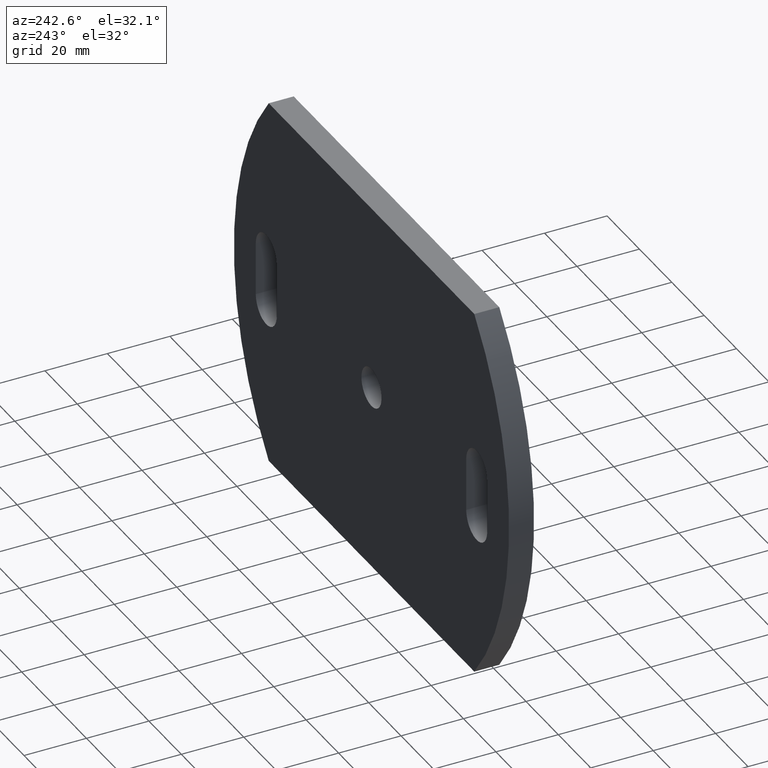
[diagram: clean part render]
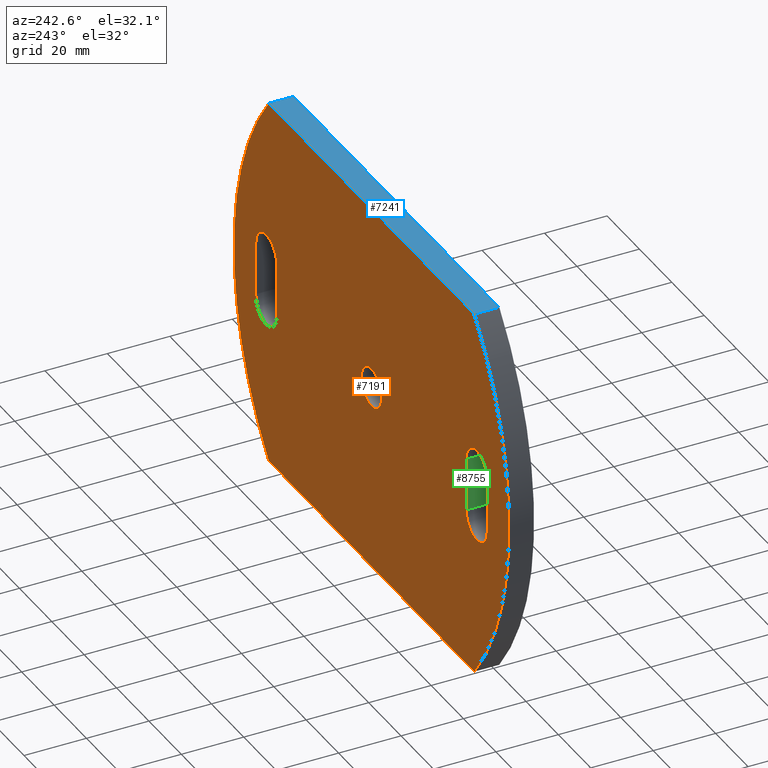
[diagram: same view with three faces highlighted in distinct colors, each labeled with its STEP entity id]
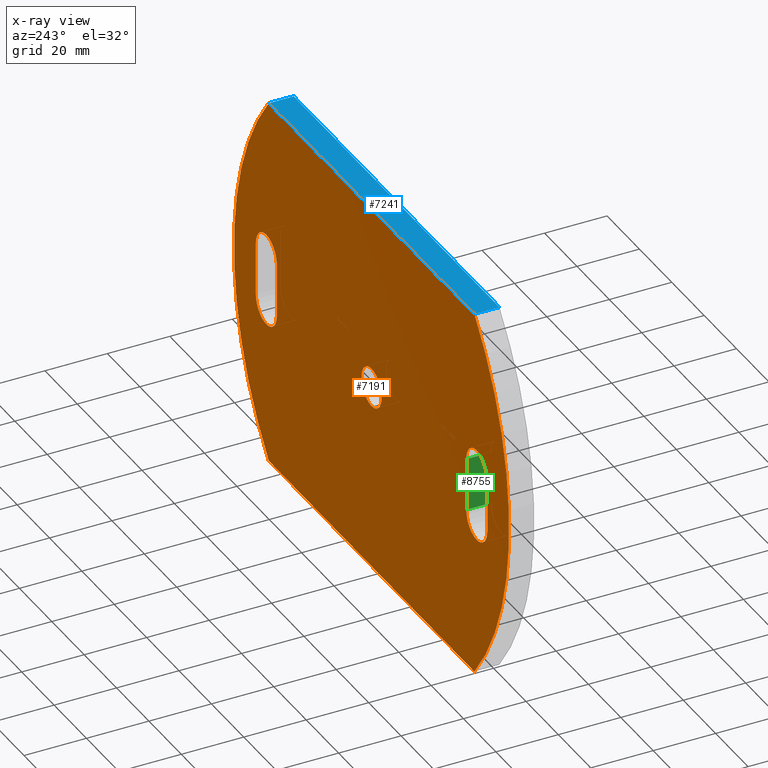
[diagram: x-ray of the same camera — body ghosted, the three highlighted faces saturated]
A machine part, auxiliary view with three faces highlighted in distinct colors.
The next image is the same camera in x-ray (body ghosted, the three faces saturated) — at least one of them is partly hidden behind the body in this view.
Their STEP definitions:

[orange] entity #7191 — the highlighted planar face has unit normal (0, -1, 0).
#195 = VERTEX_POINT ( 'NONE', #1056 ) ;
#251 = CARTESIAN_POINT ( 'NONE',  ( 0.0000000000000000000, 8.000000000000000000, 0.0000000000000000000 ) ) ;
#387 = CARTESIAN_POINT ( 'NONE',  ( 63.49999999999998600, 8.000000000000000000, 60.00000000000002800 ) ) ;
#426 = EDGE_CURVE ( 'NONE', #3360, #195, #10870, .T. ) ;
#711 = DIRECTION ( 'NONE',  ( 0.0000000000000000000, 1.000000000000000000, 0.0000000000000000000 ) ) ;
#772 = ORIENTED_EDGE ( 'NONE', *, *, #8766, .T. ) ;
#789 = EDGE_CURVE ( 'NONE', #3967, #2652, #3811, .T. ) ;
#1056 = CARTESIAN_POINT ( 'NONE',  ( -65.00000000000000000, 8.000000000000000000, 14.99999999999998000 ) ) ;
#1059 = EDGE_CURVE ( 'NONE', #6535, #6808, #1264, .T. ) ;
#1106 = VERTEX_POINT ( 'NONE', #4754 ) ;
#1110 = CARTESIAN_POINT ( 'NONE',  ( -58.50000000000000700, 8.000000000000000000, -8.499999999999984000 ) ) ;
#1128 = EDGE_CURVE ( 'NONE', #6084, #9875, #7521, .T. ) ;
#1231 = VECTOR ( 'NONE', #10256, 1000.000000000000000 ) ;
#1264 = CIRCLE ( 'NONE', #7850, 6.500000000000005300 ) ;
#1273 = DIRECTION ( 'NONE',  ( 0.0000000000000000000, 0.0000000000000000000, 1.000000000000000000 ) ) ;
#1335 = DIRECTION ( 'NONE',  ( 0.0000000000000000000, 1.000000000000000000, 0.0000000000000000000 ) ) ;
#1432 = CARTESIAN_POINT ( 'NONE',  ( 0.0000000000000000000, 8.000000000000000000, 0.0000000000000000000 ) ) ;
#1514 = CARTESIAN_POINT ( 'NONE',  ( 58.49999999999998600, 8.000000000000000000, -8.500000000000008900 ) ) ;
#1586 = AXIS2_PLACEMENT_3D ( 'NONE', #1432, #10627, #3860 ) ;
#1613 = VERTEX_POINT ( 'NONE', #6567 ) ;
#1615 = DIRECTION ( 'NONE',  ( -0.0000000000000000000, -0.0000000000000000000, -1.000000000000000000 ) ) ;
#1653 = AXIS2_PLACEMENT_3D ( 'NONE', #5186, #10310, #4386 ) ;
#1672 = DIRECTION ( 'NONE',  ( 0.0000000000000000000, 0.0000000000000000000, 1.000000000000000000 ) ) ;
#1684 = FACE_BOUND ( 'NONE', #4648, .T. ) ;
#1830 = CARTESIAN_POINT ( 'NONE',  ( -65.00000000000000000, 8.000000000000000000, 8.499999999999989300 ) ) ;
#1840 = DIRECTION ( 'NONE',  ( -1.000000000000000000, -0.0000000000000000000, -3.278217592397115900E-016 ) ) ;
#1854 = VERTEX_POINT ( 'NONE', #7710 ) ;
#1871 = EDGE_CURVE ( 'NONE', #1854, #7556, #3378, .T. ) ;
#1980 = ORIENTED_EDGE ( 'NONE', *, *, #3587, .F. ) ;
#2001 = ORIENTED_EDGE ( 'NONE', *, *, #5338, .T. ) ;
#2232 = EDGE_CURVE ( 'NONE', #7556, #3360, #9351, .T. ) ;
#2312 = AXIS2_PLACEMENT_3D ( 'NONE', #1830, #2550, #8570 ) ;
#2409 = ORIENTED_EDGE ( 'NONE', *, *, #2232, .F. ) ;
#2503 = FACE_BOUND ( 'NONE', #3841, .T. ) ;
#2550 = DIRECTION ( 'NONE',  ( 0.0000000000000000000, 1.000000000000000000, 0.0000000000000000000 ) ) ;
#2652 = VERTEX_POINT ( 'NONE', #1514 ) ;
#2723 = ORIENTED_EDGE ( 'NONE', *, *, #5634, .F. ) ;
#2764 = FACE_OUTER_BOUND ( 'NONE', #2965, .T. ) ;
#2849 = VECTOR ( 'NONE', #3952, 1000.000000000000000 ) ;
#2965 = EDGE_LOOP ( 'NONE', ( #772, #10415, #7334, #2001 ) ) ;
#3028 = DIRECTION ( 'NONE',  ( 0.0000000000000000000, 0.0000000000000000000, 1.000000000000000000 ) ) ;
#3127 = DIRECTION ( 'NONE',  ( 0.0000000000000000000, 1.000000000000000000, 0.0000000000000000000 ) ) ;
#3228 = CARTESIAN_POINT ( 'NONE',  ( 71.50000000000000000, 8.000000000000000000, -8.500000000000010700 ) ) ;
#3301 = AXIS2_PLACEMENT_3D ( 'NONE', #5023, #9353, #8446 ) ;
#3324 = AXIS2_PLACEMENT_3D ( 'NONE', #8090, #6333, #1273 ) ;
#3360 = VERTEX_POINT ( 'NONE', #7179 ) ;
#3378 = CIRCLE ( 'NONE', #1653, 6.499999999999992000 ) ;
#3421 = CARTESIAN_POINT ( 'NONE',  ( -71.50000000000000000, 8.000000000000000000, -8.499999999999985800 ) ) ;
#3439 = CARTESIAN_POINT ( 'NONE',  ( -63.49999999999998600, 8.000000000000000000, -60.00000000000001400 ) ) ;
#3503 = CARTESIAN_POINT ( 'NONE',  ( 65.00000000000000000, 8.000000000000000000, 15.00000000000001600 ) ) ;
#3521 = ORIENTED_EDGE ( 'NONE', *, *, #10789, .F. ) ;
#3587 = EDGE_CURVE ( 'NONE', #2652, #6535, #8149, .T. ) ;
#3752 = LINE ( 'NONE', #3228, #5592 ) ;
#3811 = CIRCLE ( 'NONE', #4640, 6.500000000000005300 ) ;
#3841 = EDGE_LOOP ( 'NONE', ( #10646, #4162 ) ) ;
#3860 = DIRECTION ( 'NONE',  ( 0.0000000000000000000, 0.0000000000000000000, 1.000000000000000000 ) ) ;
#3952 = DIRECTION ( 'NONE',  ( 1.000000000000000000, 0.0000000000000000000, 3.824587191129968500E-016 ) ) ;
#3967 = VERTEX_POINT ( 'NONE', #6648 ) ;
#3985 = ORIENTED_EDGE ( 'NONE', *, *, #426, .F. ) ;
#4101 = CIRCLE ( 'NONE', #6513, 6.500000000000005300 ) ;
#4162 = ORIENTED_EDGE ( 'NONE', *, *, #4432, .F. ) ;
#4386 = DIRECTION ( 'NONE',  ( 0.0000000000000000000, 0.0000000000000000000, 1.000000000000000000 ) ) ;
#4432 = EDGE_CURVE ( 'NONE', #8598, #1613, #4553, .T. ) ;
#4553 = CIRCLE ( 'NONE', #1586, 6.250000000000000000 ) ;
#4631 = CARTESIAN_POINT ( 'NONE',  ( -9.470930232558071500, 8.000000000000000000, 0.0000000000000000000 ) ) ;
#4640 = AXIS2_PLACEMENT_3D ( 'NONE', #5681, #6591, #8346 ) ;
#4648 = EDGE_LOOP ( 'NONE', ( #1980, #10343, #3521, #2723, #8720 ) ) ;
#4754 = CARTESIAN_POINT ( 'NONE',  ( 63.50000000000001400, 8.000000000000000000, -59.99999999999997200 ) ) ;
#4909 = ORIENTED_EDGE ( 'NONE', *, *, #1871, .F. ) ;
#5023 = CARTESIAN_POINT ( 'NONE',  ( -9.470930232558071500, 8.000000000000000000, 0.0000000000000000000 ) ) ;
#5132 = VERTEX_POINT ( 'NONE', #8070 ) ;
#5186 = CARTESIAN_POINT ( 'NONE',  ( -65.00000000000000000, 8.000000000000000000, -8.500000000000010700 ) ) ;
#5338 = EDGE_CURVE ( 'NONE', #9875, #9362, #6435, .T. ) ;
#5560 = CARTESIAN_POINT ( 'NONE',  ( 65.00000000000000000, 8.000000000000000000, 8.500000000000010700 ) ) ;
#5592 = VECTOR ( 'NONE', #1615, 1000.000000000000000 ) ;
#5600 = DIRECTION ( 'NONE',  ( 0.0000000000000000000, 0.0000000000000000000, 1.000000000000000000 ) ) ;
#5614 = EDGE_CURVE ( 'NONE', #1613, #8598, #11013, .T. ) ;
#5634 = EDGE_CURVE ( 'NONE', #6808, #8134, #4101, .T. ) ;
#5681 = CARTESIAN_POINT ( 'NONE',  ( 65.00000000000000000, 8.000000000000000000, -8.499999999999987600 ) ) ;
#5947 = VECTOR ( 'NONE', #6288, 1000.000000000000000 ) ;
#5991 = AXIS2_PLACEMENT_3D ( 'NONE', #4631, #9609, #10430 ) ;
#6084 = VERTEX_POINT ( 'NONE', #7989 ) ;
#6288 = DIRECTION ( 'NONE',  ( -0.0000000000000000000, -0.0000000000000000000, -1.000000000000000000 ) ) ;
#6333 = DIRECTION ( 'NONE',  ( 0.0000000000000000000, 1.000000000000000000, 0.0000000000000000000 ) ) ;
#6435 = LINE ( 'NONE', #8189, #2849 ) ;
#6513 = AXIS2_PLACEMENT_3D ( 'NONE', #5560, #1335, #5600 ) ;
#6535 = VERTEX_POINT ( 'NONE', #8752 ) ;
#6567 = CARTESIAN_POINT ( 'NONE',  ( 0.0000000000000000000, 8.000000000000000000, 6.250000000000000000 ) ) ;
#6591 = DIRECTION ( 'NONE',  ( 0.0000000000000000000, 1.000000000000000000, 0.0000000000000000000 ) ) ;
#6648 = CARTESIAN_POINT ( 'NONE',  ( 71.50000000000000000, 8.000000000000000000, -8.500000000000010700 ) ) ;
#6808 = VERTEX_POINT ( 'NONE', #3503 ) ;
#6896 = EDGE_CURVE ( 'NONE', #5132, #1854, #7157, .T. ) ;
#6900 = CARTESIAN_POINT ( 'NONE',  ( 58.49999999999998600, 8.000000000000000000, -8.500000000000008900 ) ) ;
#7157 = LINE ( 'NONE', #1110, #5947 ) ;
#7179 = CARTESIAN_POINT ( 'NONE',  ( -71.50000000000000000, 8.000000000000000000, 8.499999999999982200 ) ) ;
#7191 = ADVANCED_FACE ( 'NONE', ( #1684, #8361, #2503, #2764 ), #10510, .F. ) ;
#7334 = ORIENTED_EDGE ( 'NONE', *, *, #1128, .T. ) ;
#7521 = CIRCLE ( 'NONE', #8422, 94.47093023255811800 ) ;
#7556 = VERTEX_POINT ( 'NONE', #7808 ) ;
#7710 = CARTESIAN_POINT ( 'NONE',  ( -58.50000000000000700, 8.000000000000000000, -8.499999999999984000 ) ) ;
#7720 = EDGE_LOOP ( 'NONE', ( #2409, #4909, #10231, #10735, #3985 ) ) ;
#7798 = VECTOR ( 'NONE', #1840, 1000.000000000000000 ) ;
#7808 = CARTESIAN_POINT ( 'NONE',  ( -71.50000000000000000, 8.000000000000000000, -8.499999999999985800 ) ) ;
#7850 = AXIS2_PLACEMENT_3D ( 'NONE', #8220, #3127, #9847 ) ;
#7989 = CARTESIAN_POINT ( 'NONE',  ( -63.49999999999995700, 8.000000000000000000, -60.00000000000004300 ) ) ;
#8070 = CARTESIAN_POINT ( 'NONE',  ( -58.50000000000000700, 8.000000000000000000, 8.499999999999984000 ) ) ;
#8090 = CARTESIAN_POINT ( 'NONE',  ( -65.00000000000000000, 8.000000000000000000, 8.499999999999989300 ) ) ;
#8134 = VERTEX_POINT ( 'NONE', #10066 ) ;
#8149 = LINE ( 'NONE', #6900, #1231 ) ;
#8189 = CARTESIAN_POINT ( 'NONE',  ( -63.50000000000001400, 8.000000000000000000, 59.99999999999997900 ) ) ;
#8220 = CARTESIAN_POINT ( 'NONE',  ( 65.00000000000000000, 8.000000000000000000, 8.500000000000010700 ) ) ;
#8280 = EDGE_CURVE ( 'NONE', #1106, #6084, #8885, .T. ) ;
#8346 = DIRECTION ( 'NONE',  ( 0.0000000000000000000, 0.0000000000000000000, 1.000000000000000000 ) ) ;
#8361 = FACE_BOUND ( 'NONE', #7720, .T. ) ;
#8362 = CARTESIAN_POINT ( 'NONE',  ( -63.50000000000001400, 8.000000000000000000, 59.99999999999997900 ) ) ;
#8422 = AXIS2_PLACEMENT_3D ( 'NONE', #10786, #711, #10820 ) ;
#8446 = DIRECTION ( 'NONE',  ( 0.0000000000000000000, 0.0000000000000000000, -1.000000000000000000 ) ) ;
#8458 = CARTESIAN_POINT ( 'NONE',  ( 7.654042494670957600E-016, 8.000000000000000000, -6.250000000000000000 ) ) ;
#8570 = DIRECTION ( 'NONE',  ( 0.0000000000000000000, 0.0000000000000000000, 1.000000000000000000 ) ) ;
#8598 = VERTEX_POINT ( 'NONE', #8458 ) ;
#8720 = ORIENTED_EDGE ( 'NONE', *, *, #1059, .F. ) ;
#8752 = CARTESIAN_POINT ( 'NONE',  ( 58.50000000000000000, 8.000000000000000000, 8.500000000000008900 ) ) ;
#8766 = EDGE_CURVE ( 'NONE', #9362, #1106, #10462, .T. ) ;
#8885 = LINE ( 'NONE', #3439, #7798 ) ;
#9039 = DIRECTION ( 'NONE',  ( 0.0000000000000000000, 1.000000000000000000, 0.0000000000000000000 ) ) ;
#9351 = LINE ( 'NONE', #3421, #9489 ) ;
#9353 = DIRECTION ( 'NONE',  ( 0.0000000000000000000, 1.000000000000000000, -0.0000000000000000000 ) ) ;
#9362 = VERTEX_POINT ( 'NONE', #387 ) ;
#9489 = VECTOR ( 'NONE', #1672, 1000.000000000000000 ) ;
#9609 = DIRECTION ( 'NONE',  ( 0.0000000000000000000, -1.000000000000000000, 0.0000000000000000000 ) ) ;
#9847 = DIRECTION ( 'NONE',  ( 0.0000000000000000000, 0.0000000000000000000, 1.000000000000000000 ) ) ;
#9875 = VERTEX_POINT ( 'NONE', #8362 ) ;
#10066 = CARTESIAN_POINT ( 'NONE',  ( 71.50000000000000000, 8.000000000000000000, 8.500000000000010700 ) ) ;
#10133 = EDGE_CURVE ( 'NONE', #195, #5132, #10692, .T. ) ;
#10231 = ORIENTED_EDGE ( 'NONE', *, *, #6896, .F. ) ;
#10256 = DIRECTION ( 'NONE',  ( 0.0000000000000000000, 0.0000000000000000000, 1.000000000000000000 ) ) ;
#10310 = DIRECTION ( 'NONE',  ( 0.0000000000000000000, 1.000000000000000000, 0.0000000000000000000 ) ) ;
#10343 = ORIENTED_EDGE ( 'NONE', *, *, #789, .F. ) ;
#10415 = ORIENTED_EDGE ( 'NONE', *, *, #8280, .T. ) ;
#10430 = DIRECTION ( 'NONE',  ( 0.0000000000000000000, -0.0000000000000000000, -1.000000000000000000 ) ) ;
#10462 = CIRCLE ( 'NONE', #3301, 94.47093023255808900 ) ;
#10507 = AXIS2_PLACEMENT_3D ( 'NONE', #251, #9039, #3028 ) ;
#10510 = PLANE ( 'NONE',  #5991 ) ;
#10627 = DIRECTION ( 'NONE',  ( 0.0000000000000000000, 1.000000000000000000, 0.0000000000000000000 ) ) ;
#10646 = ORIENTED_EDGE ( 'NONE', *, *, #5614, .F. ) ;
#10692 = CIRCLE ( 'NONE', #3324, 6.499999999999992000 ) ;
#10735 = ORIENTED_EDGE ( 'NONE', *, *, #10133, .F. ) ;
#10786 = CARTESIAN_POINT ( 'NONE',  ( 9.470930232558114200, 8.000000000000000000, 3.469446951953614200E-015 ) ) ;
#10789 = EDGE_CURVE ( 'NONE', #8134, #3967, #3752, .T. ) ;
#10820 = DIRECTION ( 'NONE',  ( 0.0000000000000000000, 0.0000000000000000000, 1.000000000000000000 ) ) ;
#10870 = CIRCLE ( 'NONE', #2312, 6.499999999999992000 ) ;
#11013 = CIRCLE ( 'NONE', #10507, 6.250000000000000000 ) ;

[blue] entity #7241 — the highlighted planar face has unit normal (0, 0, -1).
#77 = VERTEX_POINT ( 'NONE', #6036 ) ;
#166 = CARTESIAN_POINT ( 'NONE',  ( -63.50000000000001400, 8.000000000000000000, 59.99999999999997900 ) ) ;
#387 = CARTESIAN_POINT ( 'NONE',  ( 63.49999999999998600, 8.000000000000000000, 60.00000000000002800 ) ) ;
#1348 = EDGE_CURVE ( 'NONE', #9875, #77, #1394, .T. ) ;
#1394 = LINE ( 'NONE', #166, #1783 ) ;
#1409 = LINE ( 'NONE', #7651, #9926 ) ;
#1783 = VECTOR ( 'NONE', #5198, 1000.000000000000000 ) ;
#1913 = ORIENTED_EDGE ( 'NONE', *, *, #1348, .T. ) ;
#2002 = PLANE ( 'NONE',  #2807 ) ;
#2568 = DIRECTION ( 'NONE',  ( -0.0000000000000000000, -1.000000000000000000, -0.0000000000000000000 ) ) ;
#2680 = DIRECTION ( 'NONE',  ( 1.000000000000000000, 0.0000000000000000000, 3.824587191129968500E-016 ) ) ;
#2807 = AXIS2_PLACEMENT_3D ( 'NONE', #7943, #3737, #5429 ) ;
#2849 = VECTOR ( 'NONE', #3952, 1000.000000000000000 ) ;
#3148 = ORIENTED_EDGE ( 'NONE', *, *, #8786, .F. ) ;
#3291 = FACE_OUTER_BOUND ( 'NONE', #3585, .T. ) ;
#3585 = EDGE_LOOP ( 'NONE', ( #9716, #3148, #5960, #1913 ) ) ;
#3737 = DIRECTION ( 'NONE',  ( 3.824587191129969000E-016, 0.0000000000000000000, -1.000000000000000000 ) ) ;
#3952 = DIRECTION ( 'NONE',  ( 1.000000000000000000, 0.0000000000000000000, 3.824587191129968500E-016 ) ) ;
#4277 = VERTEX_POINT ( 'NONE', #5519 ) ;
#5115 = LINE ( 'NONE', #8485, #10867 ) ;
#5198 = DIRECTION ( 'NONE',  ( -0.0000000000000000000, -1.000000000000000000, -0.0000000000000000000 ) ) ;
#5338 = EDGE_CURVE ( 'NONE', #9875, #9362, #6435, .T. ) ;
#5429 = DIRECTION ( 'NONE',  ( -1.000000000000000000, 0.0000000000000000000, -3.824587191129969000E-016 ) ) ;
#5519 = CARTESIAN_POINT ( 'NONE',  ( 63.49999999999998600, 0.0000000000000000000, 60.00000000000002800 ) ) ;
#5960 = ORIENTED_EDGE ( 'NONE', *, *, #5338, .F. ) ;
#6036 = CARTESIAN_POINT ( 'NONE',  ( -63.50000000000001400, 0.0000000000000000000, 59.99999999999997900 ) ) ;
#6435 = LINE ( 'NONE', #8189, #2849 ) ;
#7241 = ADVANCED_FACE ( 'NONE', ( #3291 ), #2002, .F. ) ;
#7651 = CARTESIAN_POINT ( 'NONE',  ( 63.49999999999998600, 8.000000000000000000, 60.00000000000002800 ) ) ;
#7865 = EDGE_CURVE ( 'NONE', #77, #4277, #5115, .T. ) ;
#7943 = CARTESIAN_POINT ( 'NONE',  ( -63.50000000000001400, 8.000000000000000000, 59.99999999999997900 ) ) ;
#8189 = CARTESIAN_POINT ( 'NONE',  ( -63.50000000000001400, 8.000000000000000000, 59.99999999999997900 ) ) ;
#8362 = CARTESIAN_POINT ( 'NONE',  ( -63.50000000000001400, 8.000000000000000000, 59.99999999999997900 ) ) ;
#8485 = CARTESIAN_POINT ( 'NONE',  ( -63.50000000000001400, 0.0000000000000000000, 59.99999999999997900 ) ) ;
#8786 = EDGE_CURVE ( 'NONE', #9362, #4277, #1409, .T. ) ;
#9362 = VERTEX_POINT ( 'NONE', #387 ) ;
#9716 = ORIENTED_EDGE ( 'NONE', *, *, #7865, .T. ) ;
#9875 = VERTEX_POINT ( 'NONE', #8362 ) ;
#9926 = VECTOR ( 'NONE', #2568, 1000.000000000000000 ) ;
#10867 = VECTOR ( 'NONE', #2680, 1000.000000000000000 ) ;

[green] entity #8755 — the highlighted planar face has unit normal (1, 0, -0).
#752 = EDGE_CURVE ( 'NONE', #10368, #1251, #6861, .T. ) ;
#1110 = CARTESIAN_POINT ( 'NONE',  ( -58.50000000000000700, 8.000000000000000000, -8.499999999999984000 ) ) ;
#1225 = ORIENTED_EDGE ( 'NONE', *, *, #6896, .T. ) ;
#1251 = VERTEX_POINT ( 'NONE', #10987 ) ;
#1283 = VECTOR ( 'NONE', #6854, 1000.000000000000000 ) ;
#1854 = VERTEX_POINT ( 'NONE', #7710 ) ;
#1946 = CARTESIAN_POINT ( 'NONE',  ( -58.50000000000000700, 0.0000000000000000000, 8.499999999999984000 ) ) ;
#2015 = EDGE_CURVE ( 'NONE', #1251, #1854, #2207, .T. ) ;
#2207 = LINE ( 'NONE', #9790, #4582 ) ;
#3517 = CARTESIAN_POINT ( 'NONE',  ( -58.50000000000000700, 0.0000000000000000000, 8.499999999999984000 ) ) ;
#3807 = FACE_OUTER_BOUND ( 'NONE', #4830, .T. ) ;
#3981 = ORIENTED_EDGE ( 'NONE', *, *, #752, .F. ) ;
#4189 = DIRECTION ( 'NONE',  ( -0.0000000000000000000, 0.0000000000000000000, -1.000000000000000000 ) ) ;
#4582 = VECTOR ( 'NONE', #8910, 1000.000000000000000 ) ;
#4830 = EDGE_LOOP ( 'NONE', ( #1225, #10021, #3981, #10733 ) ) ;
#4954 = DIRECTION ( 'NONE',  ( 1.000000000000000000, 0.0000000000000000000, -0.0000000000000000000 ) ) ;
#5097 = PLANE ( 'NONE',  #8228 ) ;
#5132 = VERTEX_POINT ( 'NONE', #8070 ) ;
#5646 = DIRECTION ( 'NONE',  ( -0.0000000000000000000, -0.0000000000000000000, -1.000000000000000000 ) ) ;
#5947 = VECTOR ( 'NONE', #6288, 1000.000000000000000 ) ;
#6288 = DIRECTION ( 'NONE',  ( -0.0000000000000000000, -0.0000000000000000000, -1.000000000000000000 ) ) ;
#6725 = CARTESIAN_POINT ( 'NONE',  ( -58.50000000000000700, 0.0000000000000000000, -8.499999999999984000 ) ) ;
#6854 = DIRECTION ( 'NONE',  ( -0.0000000000000000000, 1.000000000000000000, -0.0000000000000000000 ) ) ;
#6861 = LINE ( 'NONE', #9178, #10456 ) ;
#6896 = EDGE_CURVE ( 'NONE', #5132, #1854, #7157, .T. ) ;
#7157 = LINE ( 'NONE', #1110, #5947 ) ;
#7710 = CARTESIAN_POINT ( 'NONE',  ( -58.50000000000000700, 8.000000000000000000, -8.499999999999984000 ) ) ;
#8070 = CARTESIAN_POINT ( 'NONE',  ( -58.50000000000000700, 8.000000000000000000, 8.499999999999984000 ) ) ;
#8194 = EDGE_CURVE ( 'NONE', #10368, #5132, #9138, .T. ) ;
#8228 = AXIS2_PLACEMENT_3D ( 'NONE', #6725, #4954, #4189 ) ;
#8755 = ADVANCED_FACE ( 'NONE', ( #3807 ), #5097, .F. ) ;
#8910 = DIRECTION ( 'NONE',  ( -0.0000000000000000000, 1.000000000000000000, -0.0000000000000000000 ) ) ;
#9138 = LINE ( 'NONE', #3517, #1283 ) ;
#9178 = CARTESIAN_POINT ( 'NONE',  ( -58.50000000000000700, 0.0000000000000000000, -8.499999999999984000 ) ) ;
#9790 = CARTESIAN_POINT ( 'NONE',  ( -58.50000000000000700, 0.0000000000000000000, -8.499999999999984000 ) ) ;
#10021 = ORIENTED_EDGE ( 'NONE', *, *, #2015, .F. ) ;
#10368 = VERTEX_POINT ( 'NONE', #1946 ) ;
#10456 = VECTOR ( 'NONE', #5646, 1000.000000000000000 ) ;
#10733 = ORIENTED_EDGE ( 'NONE', *, *, #8194, .T. ) ;
#10987 = CARTESIAN_POINT ( 'NONE',  ( -58.50000000000000700, 0.0000000000000000000, -8.499999999999984000 ) ) ;